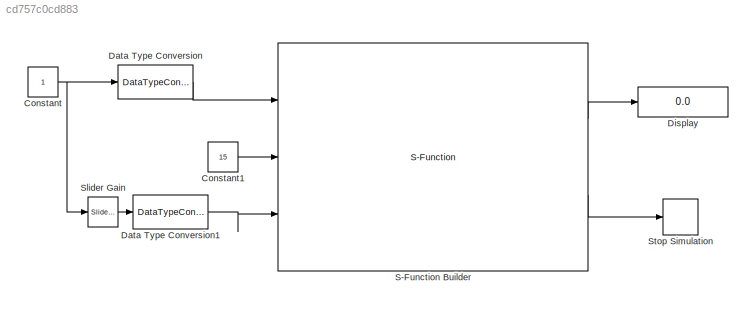
MODEL slx_cd757c0cd883
KIND model
BLOCK [Constant] Constant
BLOCK [Constant] Constant1
  OutDataTypeStr = uint8
  Value = 15
BLOCK [DataTypeConversion] Data Type Conversion
  OutDataTypeStr = boolean
  OutMax = [1]
  OutMin = [0]
  RndMeth = Floor
  SaturateOnIntegerOverflow = off
BLOCK [DataTypeConversion] Data Type Conversion1
  OutDataTypeStr = boolean
  OutMax = [1]
  OutMin = [0]
  RndMeth = Floor
  SaturateOnIntegerOverflow = off
BLOCK [Display] Display
  Decimation = 1
  Format = hex (Stored Integer)
  Lockdown = off
  Ports = [1]
BLOCK [S-Function] S-Function Builder
  CopyFcn = set_param(gcbh,'LinkStatus','none')
  EnableBusSupport = off
  FunctionName = BBB_Driver_I2C_Write
  InitFcn = try, set_param(gcb,'FunctionName','BBB_Driver_I2C_Write'), end
  OpenFcn = sfunctionwizard(gcbh)
  Parameters = uint8(1),uint8(104),uint8(32),uint8(6)
  Ports = [3, 2]
  PreSaveFcn = try, set_param(gcb,'FunctionName','BBB_Driver_I2C_Write'), end
  SFunctionModules = BBB_Driver_I2C_Write_wrapper
BLOCK [Reference] Slider Gain  REF=simulink/Math
Operations/Slider
Gain
  Ports = [1, 1]
  SourceBlock = simulink/Math\nOperations/Slider\nGain
  SourceType = Slider Gain
  gain = 1
  high = 1
  low = 0
BLOCK [Stop] Stop Simulation
LINE Constant1:1 -> S-Function Builder:2
NET Constant:1 -> Data Type Conversion:1, Slider Gain:1
LINE Data Type Conversion1:1 -> S-Function Builder:3
LINE Data Type Conversion:1 -> S-Function Builder:1
LINE S-Function Builder:1 -> Display:1
LINE S-Function Builder:2 -> Stop Simulation:1
LINE Slider Gain:1 -> Data Type Conversion1:1
note: NET lines group one-source signal fan-out (src -> all destinations, sorted); 1:1 wires keep LINE
